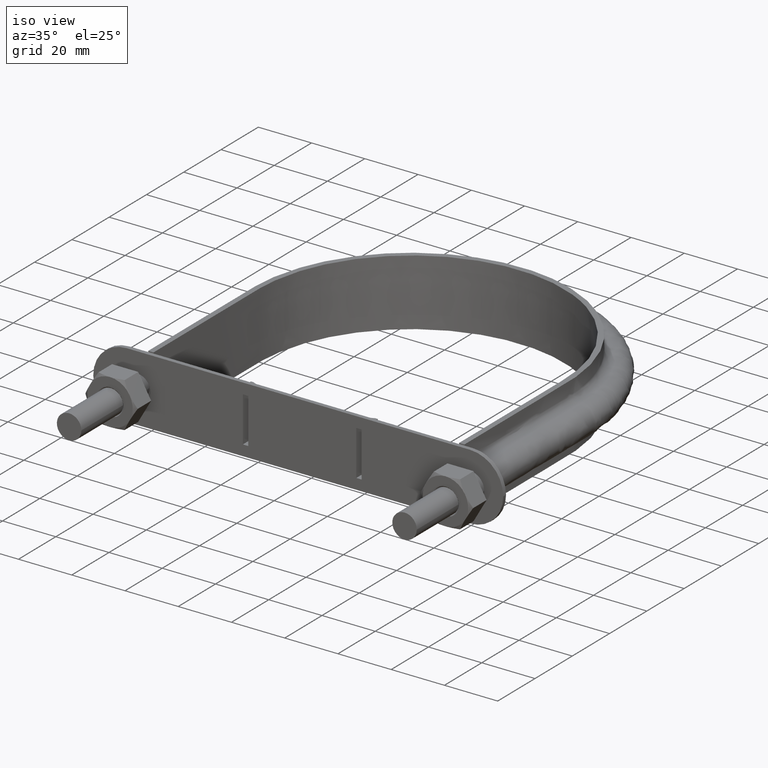
[diagram: clean part render]
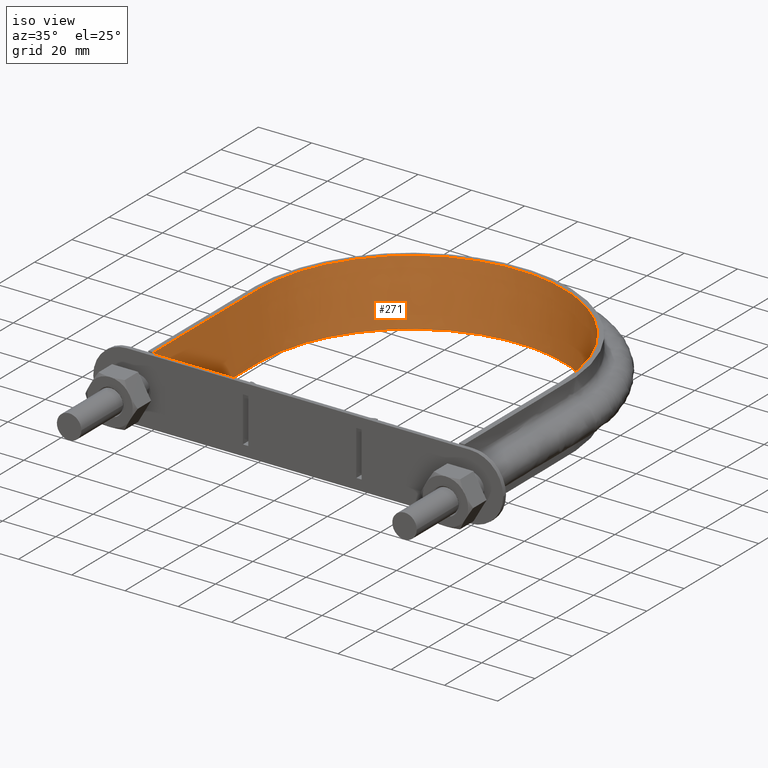
[diagram: same view with one face highlighted and labeled with its STEP entity id]
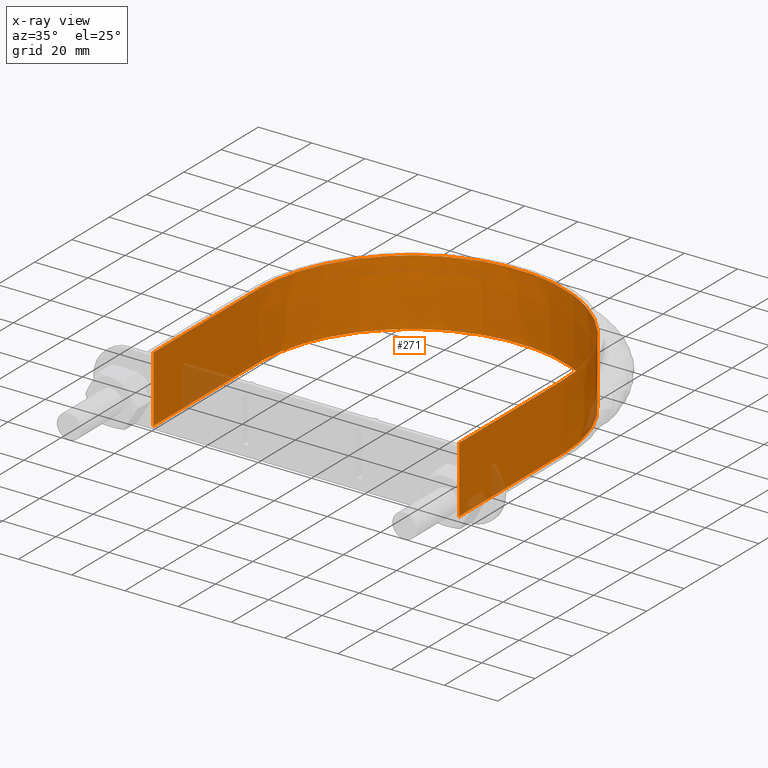
[diagram: x-ray of the same camera — body ghosted, the highlighted face saturated]
A machine part, iso view. The second image highlights one B-rep face of the part: STEP entity #271.
The next image is the same camera in x-ray: the body ghosted, the highlighted face saturated — about 5% of this face is hidden behind the body in this view.
In plain terms, the highlighted face is a SurfaceOfExtrusion surface.
Its self-contained STEP definition (entity closure, byte-faithful):
#271 = ADVANCED_FACE( '', ( #388 ), #389, .T. );
#388 = FACE_OUTER_BOUND( '', #1135, .T. );
#389 = SURFACE_OF_LINEAR_EXTRUSION( '', #1136, #1137 );
#1135 = EDGE_LOOP( '', ( #1564, #1565, #1566, #1567 ) );
#1136 = B_SPLINE_CURVE_WITH_KNOTS( '', 3, ( #1568, #1569, #1570, #1571, #1572, #1573, #1574, #1575, #1576, #1577, #1578, #1579, #1580, #1581, #1582, #1583 ), .UNSPECIFIED., .F., .F., ( 4, 3, 1, 1, 1, 1, 1, 1, 3, 4 ), ( -8.93693843594010, -8.00000000000000, -7.00000000000000, -6.00000000000000, -5.00000000000000, -4.00000000000000, -3.00000000000000, -2.00000000000000, -1.00000000000000, -0.0630615640599001 ), .UNSPECIFIED. );
#1137 = VECTOR( '', #1584, 1000.00000000000 );
#1564 = ORIENTED_EDGE( '', *, *, #2359, .T. );
#1565 = ORIENTED_EDGE( '', *, *, #2370, .T. );
#1566 = ORIENTED_EDGE( '', *, *, #2368, .F. );
#1567 = ORIENTED_EDGE( '', *, *, #2366, .T. );
#1568 = CARTESIAN_POINT( '', ( 57.4000000000000, 37.3000000000000, 12.5000100000910 ) );
#1569 = CARTESIAN_POINT( '', ( 57.4000000000000, 56.0700000000000, 12.5000100000910 ) );
#1570 = CARTESIAN_POINT( '', ( 57.4000000000000, 74.8399999999999, 12.5000100000910 ) );
#1571 = CARTESIAN_POINT( '', ( 57.4000000000000, 93.6100000000000, 12.5000100000910 ) );
#1572 = CARTESIAN_POINT( '', ( 57.4000000000000, 102.180493203978, 12.5000100000910 ) );
#1573 = CARTESIAN_POINT( '', ( 53.4810424094545, 119.371852668646, 12.5000100000910 ) );
#1574 = CARTESIAN_POINT( '', ( 37.0100296725023, 140.017335605858, 12.5000100000910 ) );
#1575 = CARTESIAN_POINT( '', ( 13.2087266606841, 151.481567469912, 12.5000100000910 ) );
#1576 = CARTESIAN_POINT( '', ( -13.2087266606841, 151.481567469912, 12.5000100000910 ) );
#1577 = CARTESIAN_POINT( '', ( -37.0100296725023, 140.017335605858, 12.5000100000910 ) );
#1578 = CARTESIAN_POINT( '', ( -53.4810424094545, 119.371852668646, 12.5000100000910 ) );
#1579 = CARTESIAN_POINT( '', ( -57.4000000000000, 102.180493203978, 12.5000100000910 ) );
#1580 = CARTESIAN_POINT( '', ( -57.4000000000000, 93.6100000000000, 12.5000100000910 ) );
#1581 = CARTESIAN_POINT( '', ( -57.4000000000000, 74.8400000000000, 12.5000100000910 ) );
#1582 = CARTESIAN_POINT( '', ( -57.4000000000000, 56.0700000000000, 12.5000100000910 ) );
#1583 = CARTESIAN_POINT( '', ( -57.4000000000000, 37.3000000000000, 12.5000100000910 ) );
#1584 = DIRECTION( '', ( 0.000000000000000, 0.000000000000000, -1.00000000000000 ) );
#2359 = EDGE_CURVE( '', #2597, #2598, #2599, .T. );
#2366 = EDGE_CURVE( '', #2610, #2597, #2611, .T. );
#2368 = EDGE_CURVE( '', #2610, #2613, #2614, .T. );
#2370 = EDGE_CURVE( '', #2598, #2613, #2616, .F. );
#2597 = VERTEX_POINT( '', #2991 );
#2598 = VERTEX_POINT( '', #2992 );
#2599 = LINE( '', #2993, #2994 );
#2610 = VERTEX_POINT( '', #3097 );
#2611 = B_SPLINE_CURVE_WITH_KNOTS( '', 3, ( #3098, #3099, #3100, #3101, #3102, #3103, #3104, #3105, #3106, #3107, #3108, #3109, #3110, #3111, #3112, #3113, #3114, #3115, #3116, #3117, #3118, #3119, #3120, #3121, #3122, #3123, #3124, #3125, #3126, #3127, #3128, #3129, #3130, #3131, #3132, #3133, #3134, #3135, #3136, #3137, #3138, #3139, #3140, #3141, #3142, #3143, #3144, #3145, #3146, #3147, #3148, #3149, #3150, #3151, #3152, #3153, #3154, #3155, #3156, #3157, #3158, #3159, #3160, #3161, #3162, #3163, #3164, #3165, #3166, #3167, #3168, #3169, #3170, #3171, #3172, #3173, #3174, #3175, #3176, #3177, #3178, #3179, #3180, #3181, #3182, #3183, #3184, #3185 ), .UNSPECIFIED., .F., .F., ( 4, 1, 2, 2, 2, 2, 2, 2, 2, 2, 2, 2, 2, 2, 2, 2, 2, 2, 2, 2, 2, 2, 2, 2, 2, 2, 2, 2, 2, 2, 2, 2, 2, 2, 2, 2, 2, 2, 2, 2, 2, 2, 2, 1, 4 ), ( 0.000000000000000, 0.0368006591004074, 0.0552009886506111, 0.0575010298443865, 0.0598010710381620, 0.0644011534257129, 0.0736013182008146, 0.0782014005883655, 0.0805014417821410, 0.0828014829759164, 0.0920016477510183, 0.0966017301385692, 0.0989017713323447, 0.101201812526120, 0.110401977301222, 0.115002059688773, 0.117302100882548, 0.119602142076324, 0.128802306851425, 0.133402389238976, 0.135702430432752, 0.138002471626527, 0.147202636401629, 0.156402801176730, 0.158702842370506, 0.161002883564281, 0.165602965951832, 0.174803130726934, 0.177103171920709, 0.179403213114485, 0.184003295502035, 0.193203460277137, 0.195503501470912, 0.197803542664688, 0.202403625052239, 0.211603789827340, 0.213903831021116, 0.216203872214891, 0.220803954602442, 0.230004119377544, 0.234604201765095, 0.236904242958870, 0.239204284152646, 0.257604613702849, 0.294405272803255 ), .UNSPECIFIED. );
#2613 = VERTEX_POINT( '', #3188 );
#2614 = LINE( '', #3189, #3190 );
#2616 = B_SPLINE_CURVE_WITH_KNOTS( '', 3, ( #3193, #3194, #3195, #3196, #3197, #3198, #3199, #3200, #3201, #3202, #3203, #3204, #3205, #3206, #3207, #3208 ), .UNSPECIFIED., .F., .F., ( 4, 3, 1, 1, 1, 1, 1, 1, 3, 4 ), ( -8.93693843594010, -8.00000000000000, -7.00000000000000, -6.00000000000000, -5.00000000000000, -4.00000000000000, -3.00000000000000, -2.00000000000000, -1.00000000000000, -0.0630615640599001 ), .UNSPECIFIED. );
#2991 = CARTESIAN_POINT( '', ( -57.4000000000000, 37.3000000000000, 12.5000000000000 ) );
#2992 = CARTESIAN_POINT( '', ( -57.4000000000000, 37.3000000000000, -12.5000000000000 ) );
#2993 = CARTESIAN_POINT( '', ( -57.4000000000000, 37.3000000000000, 12.5000100000910 ) );
#2994 = VECTOR( '', #3853, 1000.00000000000 );
#3097 = CARTESIAN_POINT( '', ( 57.4000000000000, 37.3000000000000, 12.5000000000000 ) );
#3098 = CARTESIAN_POINT( '', ( 57.4000000000000, 37.3000000000000, 12.5000000000000 ) );
#3099 = CARTESIAN_POINT( '', ( 57.4000000000000, 49.5668971504807, 12.5000000000000 ) );
#3100 = CARTESIAN_POINT( '', ( 57.4000000000000, 67.9672428762017, 12.5000000000000 ) );
#3101 = CARTESIAN_POINT( '', ( 57.4000000000000, 86.3675886019228, 12.5000000000000 ) );
#3102 = CARTESIAN_POINT( '', ( 57.4000000000000, 93.2677182490682, 12.5000000000000 ) );
#3103 = CARTESIAN_POINT( '', ( 57.4036066457801, 94.0344041032519, 12.5000000000000 ) );
#3104 = CARTESIAN_POINT( '', ( 57.3712056389476, 95.5677232845277, 12.5000000000000 ) );
#3105 = CARTESIAN_POINT( '', ( 57.3393359788148, 96.3353753045869, 12.5000000000000 ) );
#3106 = CARTESIAN_POINT( '', ( 57.1976234100831, 98.6306634699641, 12.5000000000000 ) );
#3107 = CARTESIAN_POINT( '', ( 57.0421967518527, 100.147180453960, 12.5000000000000 ) );
#3108 = CARTESIAN_POINT( '', ( 56.4004013757545, 104.657352705709, 12.5000000000000 ) );
#3109 = CARTESIAN_POINT( '', ( 55.7399883057786, 107.611959318388, 12.5000000000000 ) );
#3110 = CARTESIAN_POINT( '', ( 54.4013047063943, 111.965777471156, 12.5000000000000 ) );
#3111 = CARTESIAN_POINT( '', ( 53.8966972928596, 113.403952132018, 12.5000000000000 ) );
#3112 = CARTESIAN_POINT( '', ( 53.0487681131459, 115.540793277909, 12.5000000000000 ) );
#3113 = CARTESIAN_POINT( '', ( 52.7511260023257, 116.248939019185, 12.5000000000000 ) );
#3114 = CARTESIAN_POINT( '', ( 52.1306487491249, 117.645579267383, 12.5000000000000 ) );
#3115 = CARTESIAN_POINT( '', ( 51.8071932048134, 118.335643312284, 12.5000000000000 ) );
#3116 = CARTESIAN_POINT( '', ( 50.1243560027938, 121.745011154793, 12.5000000000000 ) );
#3117 = CARTESIAN_POINT( '', ( 48.5704537429598, 124.342805722192, 12.5000000000000 ) );
#3118 = CARTESIAN_POINT( '', ( 45.9378759805747, 128.051022440817, 12.5000000000000 ) );
#3119 = CARTESIAN_POINT( '', ( 45.0097482486540, 129.255485755391, 12.5000000000000 ) );
#3120 = CARTESIAN_POINT( '', ( 43.5399840512470, 131.013724230868, 12.5000000000000 ) );
#3121 = CARTESIAN_POINT( '', ( 43.0360401908088, 131.592882580464, 12.5000000000000 ) );
#3122 = CARTESIAN_POINT( '', ( 42.0071679355062, 132.728730541199, 12.5000000000000 ) );
#3123 = CARTESIAN_POINT( '', ( 41.4830799771195, 133.284602734684, 12.5000000000000 ) );
#3124 = CARTESIAN_POINT( '', ( 38.8150256208346, 136.004509636062, 12.5000000000000 ) );
#3125 = CARTESIAN_POINT( '', ( 36.5289375337689, 137.991083678086, 12.5000000000000 ) );
#3126 = CARTESIAN_POINT( '', ( 32.8725465474708, 140.687177301449, 12.5000000000000 ) );
#3127 = CARTESIAN_POINT( '', ( 31.6159998625507, 141.538738914915, 12.5000000000000 ) );
#3128 = CARTESIAN_POINT( '', ( 29.6741600235066, 142.744883379300, 12.5000000000000 ) );
#3129 = CARTESIAN_POINT( '', ( 29.0173621705767, 143.135046972002, 12.5000000000000 ) );
#3130 = CARTESIAN_POINT( '', ( 27.6844813094561, 143.891293691475, 12.5000000000000 ) );
#3131 = CARTESIAN_POINT( '', ( 27.0092860879621, 144.256786401143, 12.5000000000000 ) );
#3132 = CARTESIAN_POINT( '', ( 23.6148955512581, 146.008321558919, 12.5000000000000 ) );
#3133 = CARTESIAN_POINT( '', ( 20.8188839208598, 147.181221130253, 12.5000000000000 ) );
#3134 = CARTESIAN_POINT( '', ( 16.5063575914379, 148.604430974849, 12.5000000000000 ) );
#3135 = CARTESIAN_POINT( '', ( 15.0489724833802, 149.022456876127, 12.5000000000000 ) );
#3136 = CARTESIAN_POINT( '', ( 12.8322199583377, 149.562489310090, 12.5000000000000 ) );
#3137 = CARTESIAN_POINT( '', ( 12.0881682606315, 149.727937467103, 12.5000000000000 ) );
#3138 = CARTESIAN_POINT( '', ( 10.5896803128534, 150.029378956679, 12.5000000000000 ) );
#3139 = CARTESIAN_POINT( '', ( 9.83354107507645, 150.165648447286, 12.5000000000000 ) );
#3140 = CARTESIAN_POINT( '', ( 6.05033946504669, 150.768951449387, 12.5000000000000 ) );
#3141 = CARTESIAN_POINT( '', ( 3.02331961872749, 151.004107282322, 12.5000000000000 ) );
#3142 = CARTESIAN_POINT( '', ( -3.03159229771707, 151.003674706656, 12.5000000000000 ) );
#3143 = CARTESIAN_POINT( '', ( -6.05948435362845, 150.768093969407, 12.5000000000000 ) );
#3144 = CARTESIAN_POINT( '', ( -9.84492369258704, 150.163681704027, 12.5000000000000 ) );
#3145 = CARTESIAN_POINT( '', ( -10.6002721762767, 150.027389123450, 12.5000000000000 ) );
#3146 = CARTESIAN_POINT( '', ( -12.0978185021847, 149.725853405145, 12.5000000000000 ) );
#3147 = CARTESIAN_POINT( '', ( -12.8414452252183, 149.560367013091, 12.5000000000000 ) );
#3148 = CARTESIAN_POINT( '', ( -15.0570550081488, 149.020235378931, 12.5000000000000 ) );
#3149 = CARTESIAN_POINT( '', ( -16.5138535706966, 148.602163316093, 12.5000000000000 ) );
#3150 = CARTESIAN_POINT( '', ( -20.8250913381979, 147.178758755140, 12.5000000000000 ) );
#3151 = CARTESIAN_POINT( '', ( -23.6208691240754, 146.005657850112, 12.5000000000000 ) );
#3152 = CARTESIAN_POINT( '', ( -27.0156329102763, 144.253406103617, 12.5000000000000 ) );
#3153 = CARTESIAN_POINT( '', ( -27.6910147520962, 143.887696886022, 12.5000000000000 ) );
#3154 = CARTESIAN_POINT( '', ( -29.0234575114926, 143.131477440111, 12.5000000000000 ) );
#3155 = CARTESIAN_POINT( '', ( -29.6800585802789, 142.741324040592, 12.5000000000000 ) );
#3156 = CARTESIAN_POINT( '', ( -31.6213689725300, 141.535193660409, 12.5000000000000 ) );
#3157 = CARTESIAN_POINT( '', ( -32.8776437603807, 140.683619457022, 12.5000000000000 ) );
#3158 = CARTESIAN_POINT( '', ( -36.5334220827475, 137.987374398228, 12.5000000000000 ) );
#3159 = CARTESIAN_POINT( '', ( -38.8193751731556, 136.000549631674, 12.5000000000000 ) );
#3160 = CARTESIAN_POINT( '', ( -41.4874843976752, 133.279993585617, 12.5000000000000 ) );
#3161 = CARTESIAN_POINT( '', ( -42.0115944312470, 132.723974530571, 12.5000000000000 ) );
#3162 = CARTESIAN_POINT( '', ( -43.0405299781914, 131.587794110931, 12.5000000000000 ) );
#3163 = CARTESIAN_POINT( '', ( -43.5442393747026, 131.008765306377, 12.5000000000000 ) );
#3164 = CARTESIAN_POINT( '', ( -45.0135877457228, 129.250627800788, 12.5000000000000 ) );
#3165 = CARTESIAN_POINT( '', ( -45.9415210243653, 128.046162448528, 12.5000000000000 ) );
#3166 = CARTESIAN_POINT( '', ( -48.5736917716305, 124.337694282144, 12.5000000000000 ) );
#3167 = CARTESIAN_POINT( '', ( -50.1275589688898, 121.739408642437, 12.5000000000000 ) );
#3168 = CARTESIAN_POINT( '', ( -51.8104283189418, 118.328866111214, 12.5000000000000 ) );
#3169 = CARTESIAN_POINT( '', ( -52.1338941649286, 117.638538815899, 12.5000000000000 ) );
#3170 = CARTESIAN_POINT( '', ( -52.7543954652597, 116.241312252746, 12.5000000000000 ) );
#3171 = CARTESIAN_POINT( '', ( -53.0520667494113, 115.532782600104, 12.5000000000000 ) );
#3172 = CARTESIAN_POINT( '', ( -53.8993605656225, 113.396631283103, 12.5000000000000 ) );
#3173 = CARTESIAN_POINT( '', ( -54.4036525659498, 111.958777453083, 12.5000000000000 ) );
#3174 = CARTESIAN_POINT( '', ( -55.7415838846628, 107.605493588584, 12.5000000000000 ) );
#3175 = CARTESIAN_POINT( '', ( -56.4017548199478, 104.650676383386, 12.5000000000000 ) );
#3176 = CARTESIAN_POINT( '', ( -57.0431251208450, 100.139233624254, 12.5000000000000 ) );
#3177 = CARTESIAN_POINT( '', ( -57.1984001624354, 98.6221331309985, 12.5000000000000 ) );
#3178 = CARTESIAN_POINT( '', ( -57.3398068241163, 96.3257053568890, 12.5000000000000 ) );
#3179 = CARTESIAN_POINT( '', ( -57.3715266179354, 95.5584033825670, 12.5000000000000 ) );
#3180 = CARTESIAN_POINT( '', ( -57.4036727794919, 94.0253337577368, 12.5000000000000 ) );
#3181 = CARTESIAN_POINT( '', ( -57.4000000000000, 93.2587698558454, 12.5000000000000 ) );
#3182 = CARTESIAN_POINT( '', ( -57.4000000000000, 86.3597434352616, 12.5000000000000 ) );
#3183 = CARTESIAN_POINT( '', ( -57.4000000000000, 67.9623396470386, 12.5000000000000 ) );
#3184 = CARTESIAN_POINT( '', ( -57.4000000000000, 49.5649358588154, 12.5000000000000 ) );
#3185 = CARTESIAN_POINT( '', ( -57.4000000000000, 37.2999999999999, 12.5000000000000 ) );
#3188 = CARTESIAN_POINT( '', ( 57.4000000000000, 37.3000000000000, -12.5000000000000 ) );
#3189 = CARTESIAN_POINT( '', ( 57.4000000000000, 37.3000000000000, 12.5000100000910 ) );
#3190 = VECTOR( '', #3857, 1000.00000000000 );
#3193 = CARTESIAN_POINT( '', ( 57.4000000000000, 37.3000000000000, -12.5000000000000 ) );
#3194 = CARTESIAN_POINT( '', ( 57.4000000000000, 56.0700000000000, -12.5000000000000 ) );
#3195 = CARTESIAN_POINT( '', ( 57.4000000000000, 74.8399999999999, -12.5000000000000 ) );
#3196 = CARTESIAN_POINT( '', ( 57.4000000000000, 93.6100000000000, -12.5000000000000 ) );
#3197 = CARTESIAN_POINT( '', ( 57.4000000000000, 102.180493203978, -12.5000000000000 ) );
#3198 = CARTESIAN_POINT( '', ( 53.4810424094545, 119.371852668646, -12.5000000000000 ) );
#3199 = CARTESIAN_POINT( '', ( 37.0100296725023, 140.017335605858, -12.5000000000000 ) );
#3200 = CARTESIAN_POINT( '', ( 13.2087266606841, 151.481567469912, -12.5000000000000 ) );
#3201 = CARTESIAN_POINT( '', ( -13.2087266606841, 151.481567469912, -12.5000000000000 ) );
#3202 = CARTESIAN_POINT( '', ( -37.0100296725023, 140.017335605858, -12.5000000000000 ) );
#3203 = CARTESIAN_POINT( '', ( -53.4810424094545, 119.371852668646, -12.5000000000000 ) );
#3204 = CARTESIAN_POINT( '', ( -57.4000000000000, 102.180493203978, -12.5000000000000 ) );
#3205 = CARTESIAN_POINT( '', ( -57.4000000000000, 93.6100000000000, -12.5000000000000 ) );
#3206 = CARTESIAN_POINT( '', ( -57.4000000000000, 74.8400000000000, -12.5000000000000 ) );
#3207 = CARTESIAN_POINT( '', ( -57.4000000000000, 56.0700000000000, -12.5000000000000 ) );
#3208 = CARTESIAN_POINT( '', ( -57.4000000000000, 37.3000000000000, -12.5000000000000 ) );
#3853 = DIRECTION( '', ( 0.000000000000000, 0.000000000000000, -1.00000000000000 ) );
#3857 = DIRECTION( '', ( 0.000000000000000, 0.000000000000000, -1.00000000000000 ) );